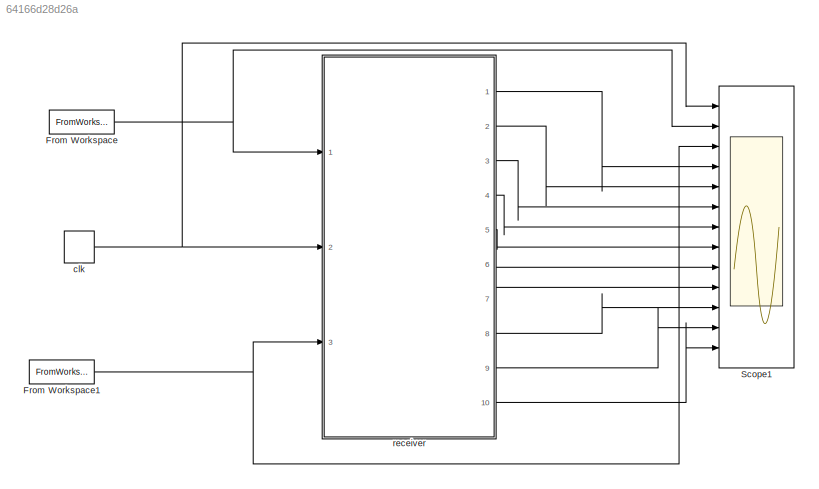
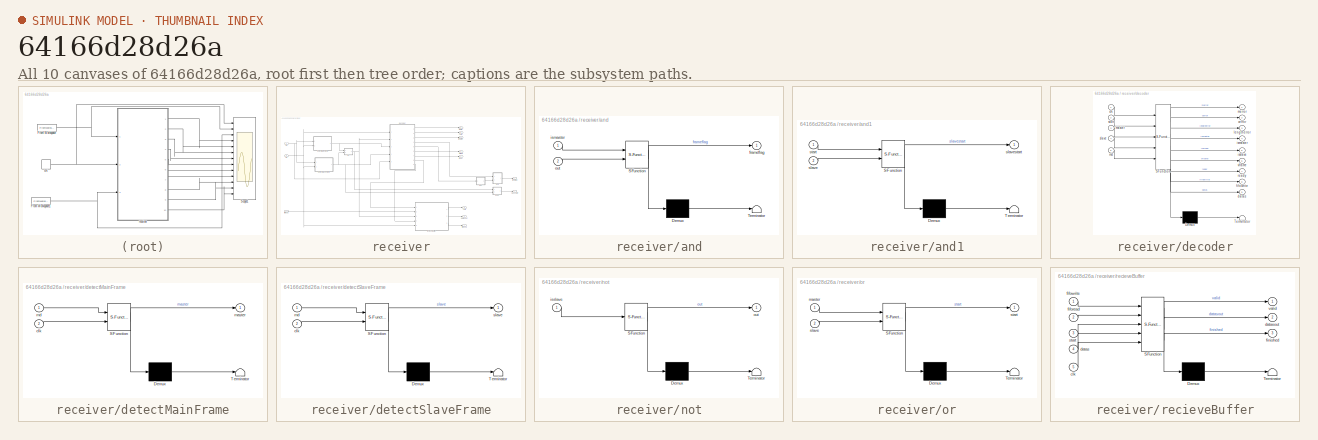
[diagram: thumbnail index - all 10 canvases of the model, root first then tree order]
MODEL slx_64166d28d26a
KIND model
CONFIG AbsTol = auto
CONFIG FixedStep = 1
CONFIG MaxStep = auto
CONFIG MinStep = auto
CONFIG RelTol = 1e-3
CONFIG SampleTimeConstraint = Unconstrained
CONFIG Solver = FixedStepDiscrete
CONFIG SolverMode = Auto
CONFIG SolverName = FixedStepDiscrete
CONFIG StartTime = 0.0
CONFIG StopTime = 1500
BLOCK [FromWorkspace] From Workspace
  SampleTime = 0
  VariableName = array
  ZeroCross = on
BLOCK [FromWorkspace] From Workspace1
  SampleTime = 0
  VariableName = read
  ZeroCross = on
BLOCK [Scope] Scope1
  Floating = off
  NumInputPorts = 13
  Ports = [13]
  SaveName = ScopeData1
  YMax = 5~5~5~5~5~5~5~5~5~5~5~5~5
  YMin = -5~-5~-5~-5~-5~-5~-5~-5~-5~-5~-5~-5~-5
BLOCK [DiscretePulseGenerator] clk
  Amplitude = true
  Ports = [0, 1]
  PulseType = Time based
  PulseWidth = 50
BLOCK [SubSystem] receiver
  Ports = [3, 10]
  RequestExecContextInheritance = off
BLOCK [SubSystem] receiver/and
  ErrorFcn = Stateflow.Translate.translate
  PermitHierarchicalResolution = ExplicitOnly
  Ports = [2, 1]
  RequestExecContextInheritance = off
  SFBlockType = Chart
  TreatAsAtomicUnit = on
BLOCK [Demux] receiver/and/ Demux 
  Outputs = 1
  Ports = [1, 1]
BLOCK [S-Function] receiver/and/ SFunction 
  EnableBusSupport = on
  FunctionName = sf_sfun
  PortCounts = [2 2]
  Ports = [2, 2]
  Tag = Stateflow S-Function all_in_one 1
BLOCK [Terminator] receiver/and/ Terminator 
BLOCK [Outport] receiver/and/frameflag
  IconDisplay = Port number
BLOCK [Inport] receiver/and/ismaster
  IconDisplay = Port number
BLOCK [Inport] receiver/and/out
  IconDisplay = Port number
  Port = 2
BLOCK [SubSystem] receiver/and1
  ErrorFcn = Stateflow.Translate.translate
  PermitHierarchicalResolution = ExplicitOnly
  Ports = [2, 1]
  RequestExecContextInheritance = off
  SFBlockType = Chart
  TreatAsAtomicUnit = on
BLOCK [Demux] receiver/and1/ Demux 
  Outputs = 1
  Ports = [1, 1]
BLOCK [S-Function] receiver/and1/ SFunction 
  EnableBusSupport = on
  FunctionName = sf_sfun
  PortCounts = [2 2]
  Ports = [2, 2]
  Tag = Stateflow S-Function all_in_one 4
BLOCK [Terminator] receiver/and1/ Terminator 
BLOCK [Inport] receiver/and1/slave
  IconDisplay = Port number
  Port = 2
BLOCK [Outport] receiver/and1/slavestart
  IconDisplay = Port number
BLOCK [Inport] receiver/and1/start
  IconDisplay = Port number
BLOCK [Outport] receiver/cerror
  IconDisplay = Port number
  Port = 9
BLOCK [Inport] receiver/clk
  IconDisplay = Port number
  Port = 2
BLOCK [Outport] receiver/datasout
  IconDisplay = Port number
  Port = 5
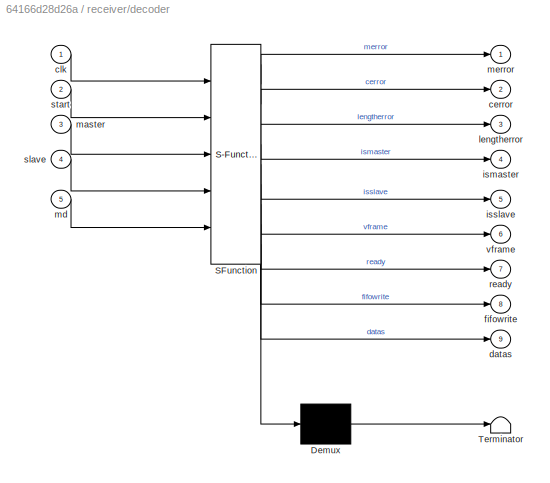
BLOCK [SubSystem] receiver/decoder
  ErrorFcn = Stateflow.Translate.translate
  PermitHierarchicalResolution = ExplicitOnly
  Ports = [5, 9]
  RequestExecContextInheritance = off
  SFBlockType = Chart
  TreatAsAtomicUnit = on
BLOCK [Demux] receiver/decoder/ Demux 
  Outputs = 1
  Ports = [1, 1]
BLOCK [S-Function] receiver/decoder/ SFunction 
  EnableBusSupport = on
  FunctionName = sf_sfun
  PortCounts = [5 10]
  Ports = [5, 10]
  Tag = Stateflow S-Function all_in_one 3
BLOCK [Terminator] receiver/decoder/ Terminator 
BLOCK [Outport] receiver/decoder/cerror
  IconDisplay = Port number
  Port = 2
BLOCK [Inport] receiver/decoder/clk
  IconDisplay = Port number
BLOCK [Outport] receiver/decoder/datas
  IconDisplay = Port number
  Port = 9
BLOCK [Outport] receiver/decoder/fifowrite
  IconDisplay = Port number
  Port = 8
BLOCK [Outport] receiver/decoder/ismaster
  IconDisplay = Port number
  Port = 4
BLOCK [Outport] receiver/decoder/isslave
  IconDisplay = Port number
  Port = 5
BLOCK [Outport] receiver/decoder/lengtherror
  IconDisplay = Port number
  Port = 3
BLOCK [Inport] receiver/decoder/master
  IconDisplay = Port number
  Port = 3
BLOCK [Inport] receiver/decoder/md
  IconDisplay = Port number
  Port = 5
BLOCK [Outport] receiver/decoder/merror
  IconDisplay = Port number
BLOCK [Outport] receiver/decoder/ready
  IconDisplay = Port number
  Port = 7
BLOCK [Inport] receiver/decoder/slave
  IconDisplay = Port number
  Port = 4
BLOCK [Inport] receiver/decoder/start
  IconDisplay = Port number
  Port = 2
BLOCK [Outport] receiver/decoder/vframe
  IconDisplay = Port number
  Port = 6
BLOCK [SubSystem] receiver/detectMainFrame
  ErrorFcn = Stateflow.Translate.translate
  PermitHierarchicalResolution = ExplicitOnly
  Ports = [2, 1]
  RequestExecContextInheritance = off
  SFBlockType = Chart
  TreatAsAtomicUnit = on
BLOCK [Demux] receiver/detectMainFrame/ Demux 
  Outputs = 1
  Ports = [1, 1]
BLOCK [S-Function] receiver/detectMainFrame/ SFunction 
  EnableBusSupport = on
  FunctionName = sf_sfun
  PortCounts = [2 2]
  Ports = [2, 2]
  Tag = Stateflow S-Function all_in_one 6
BLOCK [Terminator] receiver/detectMainFrame/ Terminator 
BLOCK [Inport] receiver/detectMainFrame/clk
  IconDisplay = Port number
  Port = 2
BLOCK [Outport] receiver/detectMainFrame/master
  IconDisplay = Port number
BLOCK [Inport] receiver/detectMainFrame/md
  IconDisplay = Port number
BLOCK [SubSystem] receiver/detectSlaveFrame
  ErrorFcn = Stateflow.Translate.translate
  PermitHierarchicalResolution = ExplicitOnly
  Ports = [2, 1]
  RequestExecContextInheritance = off
  SFBlockType = Chart
  TreatAsAtomicUnit = on
BLOCK [Demux] receiver/detectSlaveFrame/ Demux 
  Outputs = 1
  Ports = [1, 1]
BLOCK [S-Function] receiver/detectSlaveFrame/ SFunction 
  EnableBusSupport = on
  FunctionName = sf_sfun
  PortCounts = [2 2]
  Ports = [2, 2]
  Tag = Stateflow S-Function all_in_one 7
BLOCK [Terminator] receiver/detectSlaveFrame/ Terminator 
BLOCK [Inport] receiver/detectSlaveFrame/clk
  IconDisplay = Port number
  Port = 2
BLOCK [Inport] receiver/detectSlaveFrame/md
  IconDisplay = Port number
BLOCK [Outport] receiver/detectSlaveFrame/slave
  IconDisplay = Port number
BLOCK [Inport] receiver/fiforead
  IconDisplay = Port number
  Port = 3
BLOCK [Outport] receiver/finished
  IconDisplay = Port number
  Port = 7
BLOCK [Outport] receiver/flowerror
  IconDisplay = Port number
  Port = 10
BLOCK [Outport] receiver/frameflag
  IconDisplay = Port number
BLOCK [Inport] receiver/md 
  IconDisplay = Port number
BLOCK [Outport] receiver/merror
  IconDisplay = Port number
  Port = 8
BLOCK [SubSystem] receiver/not
  ErrorFcn = Stateflow.Translate.translate
  PermitHierarchicalResolution = ExplicitOnly
  Ports = [1, 1]
  RequestExecContextInheritance = off
  SFBlockType = Chart
  TreatAsAtomicUnit = on
BLOCK [Demux] receiver/not/ Demux 
  Outputs = 1
  Ports = [1, 1]
BLOCK [S-Function] receiver/not/ SFunction 
  EnableBusSupport = on
  FunctionName = sf_sfun
  PortCounts = [1 2]
  Ports = [1, 2]
  Tag = Stateflow S-Function all_in_one 2
BLOCK [Terminator] receiver/not/ Terminator 
BLOCK [Inport] receiver/not/isslave
  IconDisplay = Port number
BLOCK [Outport] receiver/not/out
  IconDisplay = Port number
BLOCK [SubSystem] receiver/or
  ErrorFcn = Stateflow.Translate.translate
  PermitHierarchicalResolution = ExplicitOnly
  Ports = [2, 1]
  RequestExecContextInheritance = off
  SFBlockType = Chart
  TreatAsAtomicUnit = on
BLOCK [Demux] receiver/or/ Demux 
  Outputs = 1
  Ports = [1, 1]
BLOCK [S-Function] receiver/or/ SFunction 
  EnableBusSupport = on
  FunctionName = sf_sfun
  PortCounts = [2 2]
  Ports = [2, 2]
  Tag = Stateflow S-Function all_in_one 8
BLOCK [Terminator] receiver/or/ Terminator 
BLOCK [Inport] receiver/or/master
  IconDisplay = Port number
BLOCK [Inport] receiver/or/slave
  IconDisplay = Port number
  Port = 2
BLOCK [Outport] receiver/or/start
  IconDisplay = Port number
BLOCK [Outport] receiver/ready
  IconDisplay = Port number
  Port = 3
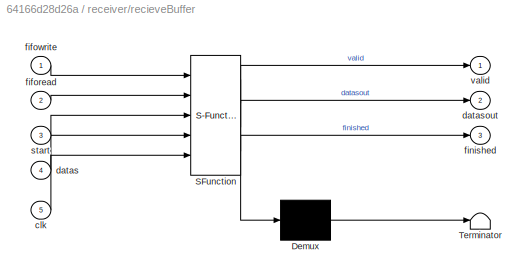
BLOCK [SubSystem] receiver/recieveBuffer
  ErrorFcn = Stateflow.Translate.translate
  PermitHierarchicalResolution = ExplicitOnly
  Ports = [5, 3]
  RequestExecContextInheritance = off
  SFBlockType = Chart
  TreatAsAtomicUnit = on
BLOCK [Demux] receiver/recieveBuffer/ Demux 
  Outputs = 1
  Ports = [1, 1]
BLOCK [S-Function] receiver/recieveBuffer/ SFunction 
  EnableBusSupport = on
  FunctionName = sf_sfun
  PortCounts = [5 4]
  Ports = [5, 4]
  Tag = Stateflow S-Function all_in_one 5
BLOCK [Terminator] receiver/recieveBuffer/ Terminator 
BLOCK [Inport] receiver/recieveBuffer/clk
  IconDisplay = Port number
  Port = 5
BLOCK [Inport] receiver/recieveBuffer/datas
  IconDisplay = Port number
  Port = 4
BLOCK [Outport] receiver/recieveBuffer/datasout
  IconDisplay = Port number
  Port = 2
BLOCK [Inport] receiver/recieveBuffer/fiforead
  IconDisplay = Port number
  Port = 2
BLOCK [Inport] receiver/recieveBuffer/fifowrite
  IconDisplay = Port number
BLOCK [Outport] receiver/recieveBuffer/finished
  IconDisplay = Port number
  Port = 3
BLOCK [Inport] receiver/recieveBuffer/start
  IconDisplay = Port number
  Port = 3
BLOCK [Outport] receiver/recieveBuffer/valid
  IconDisplay = Port number
BLOCK [Outport] receiver/slavestart
  IconDisplay = Port number
  Port = 2
BLOCK [Outport] receiver/valid
  IconDisplay = Port number
  Port = 6
BLOCK [Outport] receiver/vframe
  IconDisplay = Port number
  Port = 4
NET From Workspace1:1 -> Scope1:3, receiver:3
NET From Workspace:1 -> Scope1:2, receiver:1
NET clk:1 -> Scope1:1, receiver:2
LINE receiver/and1:1 -> receiver/slavestart:1
LINE receiver/and:1 -> receiver/frameflag:1
NET receiver/clk:1 -> receiver/decoder:1, receiver/detectMainFrame:2, receiver/detectSlaveFrame:2, receiver/recieveBuffer:5
LINE receiver/decoder:1 -> receiver/merror:1
LINE receiver/decoder:2 -> receiver/cerror:1
LINE receiver/decoder:3 -> receiver/flowerror:1
LINE receiver/decoder:4 -> receiver/and:1
LINE receiver/decoder:5 -> receiver/not:1
LINE receiver/decoder:6 -> receiver/vframe:1
LINE receiver/decoder:7 -> receiver/ready:1
LINE receiver/decoder:8 -> receiver/recieveBuffer:1
LINE receiver/decoder:9 -> receiver/recieveBuffer:4
NET receiver/detectMainFrame:1 -> receiver/decoder:3, receiver/or:1
NET receiver/detectSlaveFrame:1 -> receiver/and1:2, receiver/decoder:4, receiver/or:2
LINE receiver/fiforead:1 -> receiver/recieveBuffer:2
NET receiver/md :1 -> receiver/decoder:5, receiver/detectMainFrame:1, receiver/detectSlaveFrame:1
LINE receiver/not:1 -> receiver/and:2
NET receiver/or:1 -> receiver/and1:1, receiver/decoder:2, receiver/recieveBuffer:3
LINE receiver/recieveBuffer:1 -> receiver/valid:1
LINE receiver/recieveBuffer:2 -> receiver/datasout:1
LINE receiver/recieveBuffer:3 -> receiver/finished:1
LINE receiver:1 -> Scope1:4
LINE receiver:10 -> Scope1:13
LINE receiver:2 -> Scope1:5
LINE receiver:3 -> Scope1:6
LINE receiver:4 -> Scope1:7
LINE receiver:5 -> Scope1:8
LINE receiver:6 -> Scope1:9
LINE receiver:7 -> Scope1:10
LINE receiver:8 -> Scope1:11
LINE receiver:9 -> Scope1:12
note: NET lines group one-source signal fan-out (src -> all destinations, sorted); 1:1 wires keep LINE
CHART receiver/and states=1 transitions=1
  STATE_LABEL 'start\ndu:\nframeflag = ismaster && out;'
CHART receiver/not states=1 transitions=1
  STATE_LABEL 'start\ndu:\nout =~isslave;'
CHART receiver/decoder states=14 transitions=73
  STATE_LABEL '采样4位以后，开始解码'
  STATE_LABEL 's000\nen:\nmasterframe=false;\nslaveframe=false;\nsample8 = uint8(0);\ndu:\ns000Action();\nexit:\ns000Action();'
  STATE_LABEL 's001'
  STATE_LABEL '[clk==1]\n{\nsample8=sample8+1;\nsAction();\n}'
  STATE_LABEL 's100\n\n'
  STATE_LABEL '[clk==1]\n{\nsample8 = sample8+1;\nsAction();\n}'
  STATE_LABEL 's101\nen:\nsample8 = sample8 + 1;'
  STATE_LABEL 's01\n'
  STATE_LABEL 's00'
  STATE_LABEL '[samples(1)==false &&samples(2)== true &&...\nsamples(3) == false &&samples(4) == true]\n{dataRegisters(3:16) =dataRegisters(1:14);\ndataRegisters(1:2) = [false; false];frameAction();}'
  STATE_LABEL '[samples(1)==false &&samples(2)== true &&...\nsamples(3) == true &&samples(4) == false]\n{dataRegisters(3:16) =dataRegisters(1:14);\ndataRegisters(1:2) = [false,true];frameAction();}'
  STATE_LABEL '[samples(1)==true &&samples(2)== false &&...\nsamples(3) == false &&samples(4) == true]\n{dataRegisters(3:16) = dataRegisters(1:14);\ndataRegisters(1:2) =[true,false];frameAction();}'
  STATE_LABEL '[samples(1)==true &&samples(2)== false &&...\nsamples(3) == true &&samples(4) == false]\n{dataRegisters(3:16) = dataRegisters(1:14);\ndataRegisters(1:2) =  [true,true];frameAction();}'
  STATE_LABEL 's01\n'
  STATE_LABEL 's00'
  STATE_LABEL 's01Action'
  STATE_LABEL '[counter8==0]'
  STATE_LABEL '{\nfifowrite=false;\ndatas(1:16)=[false; false; false; false;...\nfalse; false; false; false; false; false;...\nfalse; false; false; false; false; false];\nismaster=false;\nisslave=false;\n}'
  STATE_LABEL '[total == 4]'
  STATE_LABEL '{total=total+1;\nfifowrite=true;}'
  STATE_LABEL '{total = uint8(0);}'
  STATE_LABEL '[xor(checkcode(2), dataRegisters(10))==true ...\n&& xor(checkcode(3), dataRegisters(11))==true ...\n&& xor(checkcode(4), dataRegisters(12))==true ...\n&& xor(checkcode(5), dataRegisters(13))==true ...\n&& xor(checkcode(6), dataRegisters(14))==true ...\n&& xor(checkcode(7), dataRegisters(15))==true ...\n&& xor(checkcode(8), dataRegisters(16))==true...\n&& xor(xor(xor(xor(xor(xor(xor(xor(checkcode(8), chec...<+135ch>'
  STATE_LABEL '{cerrorflag = true;}'
  STATE_LABEL '[cfl == 16]'
  STATE_LABEL '{cfl = cfl+1}'
  STATE_LABEL '{overflow = true}'
  STATE_LABEL '{\ndataRegisters=[dataRegisters(8);...\ndataRegisters(7); dataRegisters(6); dataRegisters(5);...\ndataRegisters(4);dataRegisters(3);dataRegisters(2);...\ndataRegisters(1);false; false; false; false;...\nfalse; false; false; false];\ncounter8= uint8(4);\ncheckcode=[false; false; false;...\nfalse; false; false; false; false];\nismaster=false;\nisslave=false;\nfifowrite=false;\ndatas=[false; false; false;...\nfal...<+97ch>'
  STATE_LABEL '{\ndatas=dataRegisters;\ncheckcode(1) = xor(xor(xor(xor(xor(xor(xor(xor(xor(xor(xor...\n(xor(xor(xor(xor(xor(dataRegisters(15), dataRegisters(14)), ...\ndataRegisters(13)), dataRegisters(12)), dataRegisters(11)), ...\ndataRegisters(10)), dataRegisters(9)), dataRegisters(8)),...\ndataRegisters(7)), dataRegisters(6)), dataRegisters(5)), ...\ndataRegisters(4)), dataRegisters(3)), dataRegisters(2)), ...\ndata...<+1836ch>'
  STATE_LABEL '{\nmerror=false;\ncerror=false;\nready=false;\nlengtherror=false;\nvframe=false;\n}'
  STATE_LABEL 's010\n\n'
  STATE_LABEL '[clk==1]\n{\nsample8 = sample8+1;\nsAction();\n}'
  STATE_LABEL 's011'
  STATE_LABEL '[clk==1]\n{\nsample8 = sample8+1;\nsAction();\n}'
  STATE_LABEL 's002s000Action'
  STATE_LABEL '[counter8==4]'
  STATE_LABEL '{\nmerror=true;\ncerror=false;\nready=false;\nismaster=masterframe;\nisslave=slaveframe;\nlengtherror=false;\nvframe=false;\n}'
  STATE_LABEL '[xor(checkcode(2), dataRegisters(2))==true ...\n&& xor(checkcode(3), dataRegisters(3))==true ...\n&& xor(checkcode(4), dataRegisters(4))==true ...\n&& xor(checkcode(5), dataRegisters(5))==true ...\n&& xor(checkcode(6), dataRegisters(6))==true ...\n&& xor(checkcode(7), dataRegisters(7))==true ...\n&& xor(checkcode(8), dataRegisters(8))==true...\n&& xor(xor(xor(xor(xor(xor(xor(xor(checkcode(8), checkcode(7...<+128ch>'
  STATE_LABEL '{\ncerror=true;\nready=false;\nmerror=false;\n}'
  STATE_LABEL '[cerrorflag==false && overflow==false && ...\n(cfl==1 || cfl==2 || cfl==4 || cfl==8 || cfl==16)]'
  STATE_LABEL '{ready=true;}'
CHART receiver/and1 states=1 transitions=1
  STATE_LABEL 'start\ndu:\nslavestart = start && slave;'
CHART receiver/recieveBuffer states=2 transitions=24
  STATE_LABEL 'judge'
  STATE_LABEL '[fifowrite==true]'
  STATE_LABEL '[start==false]'
  STATE_LABEL '[start==true]\n{\ntail=uint8(1);\nhead=uint8(1);\nreadtag=false;\nvalid=false;\nfinished=false;\ndatasout=zero;\n}'
  STATE_LABEL '[fiforead==true]'
  STATE_LABEL '[tail==17]'
  STATE_LABEL '{\nvalid=false;\nfinished=false;\ndatasout=zero;\n}'
  STATE_LABEL '{\nfifo(:, tail)=datas;\ntail=tail+1;\n}'
  STATE_LABEL '{tail=uint8(1)}'
  STATE_LABEL '[head==tail]'
  STATE_LABEL '{\nfinished=false;\nvalid=true;\ndatasout=fifo(:, head);\nhead=head+1;\n}'
  STATE_LABEL '{ \nhead=uint8(1);\ntail=uint8(1);\nreadtag=false;\nfinished=true;\nvalid=false;\ndatasout=zero;\n}'
  STATE_LABEL '{\nvalid=false;\nfinished=false;\ndatasout=zero;\n}'
  STATE_LABEL 'start\ndu:\njudge();\n'
CHART receiver/detectMainFrame states=3 transitions=1
  STATE_LABEL 'r = BufferFIFO(A, c)'
  STATE_LABEL 'SCRIPT:\nfunction r = BufferFIFO(A, c)\nA(2:144) = A(1:143);\nA(1) = c;\nr = A;\n \n'
  STATE_LABEL 'FIFO\ndu:\nmaster = detectMainFrame(samples);\n'
  STATE_LABEL '[clk==1]\n{\nsamples  = BufferFIFO(samples, md);\n}'
  STATE_LABEL 'r = detectMainFrame(A)'
  STATE_LABEL 'SCRIPT:\nfunction r = detectMainFrame(A)\n% start\n% case samples(143 downto 136) is\n%\t\t       when"11111111"|"11111110"|"11111101"|"11111011"|"11110111"|"11101111"|"11011111"|"10111111"|"01111111"|"00111111"|"11111100"|"01111110"|"00111100"=>%\n%\t\t\t        m1front<=\'1\';\n%\t\t\t    when others=>\n%\t\t\t        m1front<=\'0\';\n%\t\t  end case;\n%\t\t  --检测帧起始符的后半部分\n%\t\t  case samples(135 downto 128)  is\n%\t\t       wh...<+3608ch>'
CHART receiver/detectSlaveFrame states=3 transitions=1
  STATE_LABEL 'r = BufferFIFO(A, c)'
  STATE_LABEL 'SCRIPT:\nfunction r = BufferFIFO(A, c)\nA(2:144) = A(1:143);\nA(1) = c;\nr = A;\n \n'
  STATE_LABEL 'FIFO\ndu:\nslave = detectSlaveFrame(samples);\n'
  STATE_LABEL '[clk==1]\n{\nsamples  = BufferFIFO(samples, md);\n}'
  STATE_LABEL 'r = detectSlaveFrame(A)'
  STATE_LABEL 'SCRIPT:\nfunction r = detectSlaveFrame(A)\n% start DetectSlave slave%%%%%%%%%%%%%%%%%%%%%%%%%%%%%%%%%%%%%%%%%%%%%%%%%%%%%%%%%%%%%%%%%%%%%%%%%%%%%%%%%%%%%%%%%%%%%%%%%%%%%%%%\nif (A(137)==1 && A(138)==1 && A(139)==1&& A(140)==1&& A(141)==1&& A(142)==1&& A(143)==1&& A(144)==1) || ...\n    (A(137)==1 && A(138)==0 && A(139)==1&& A(140)==1&& A(141)==1&& A(142)==1&& A(143)==1&& A(144)==1) || ...\n    (A(137)=...<+3608ch>'
CHART receiver/or states=1 transitions=1
  STATE_LABEL 'start\ndu:\nstart = master || slave;'
